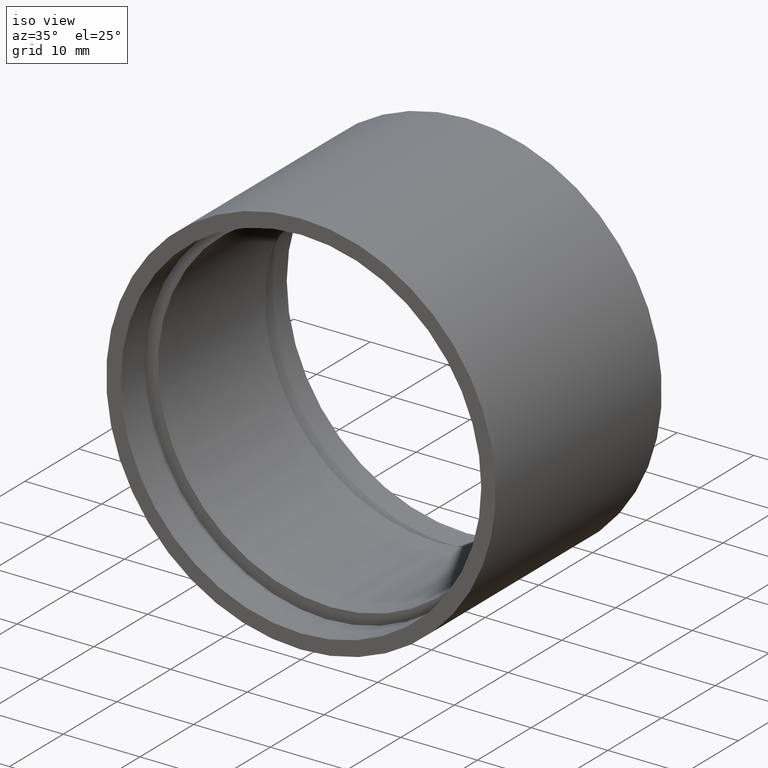
[diagram: clean part render]
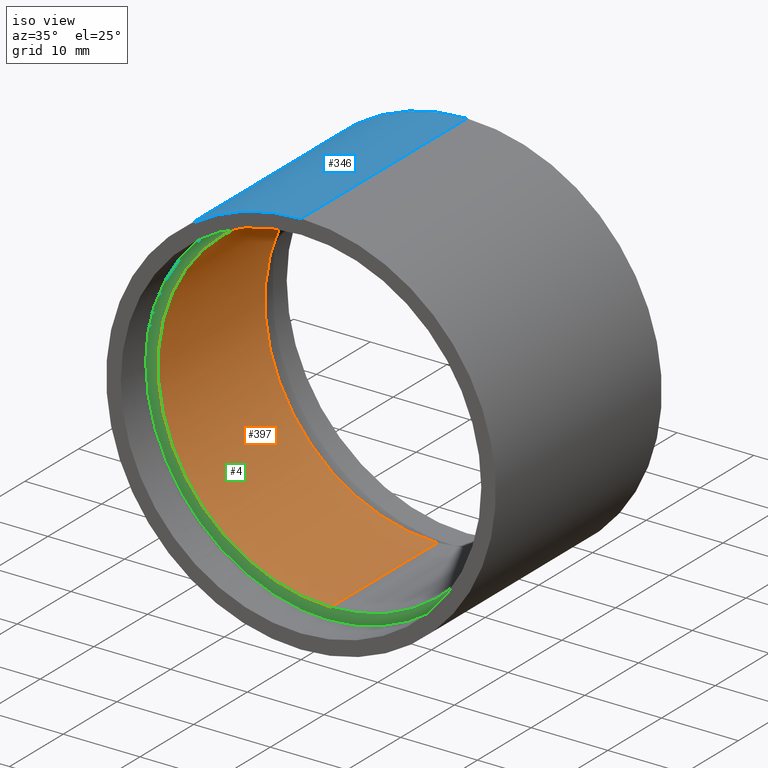
[diagram: same view with three faces highlighted in distinct colors, each labeled with its STEP entity id]
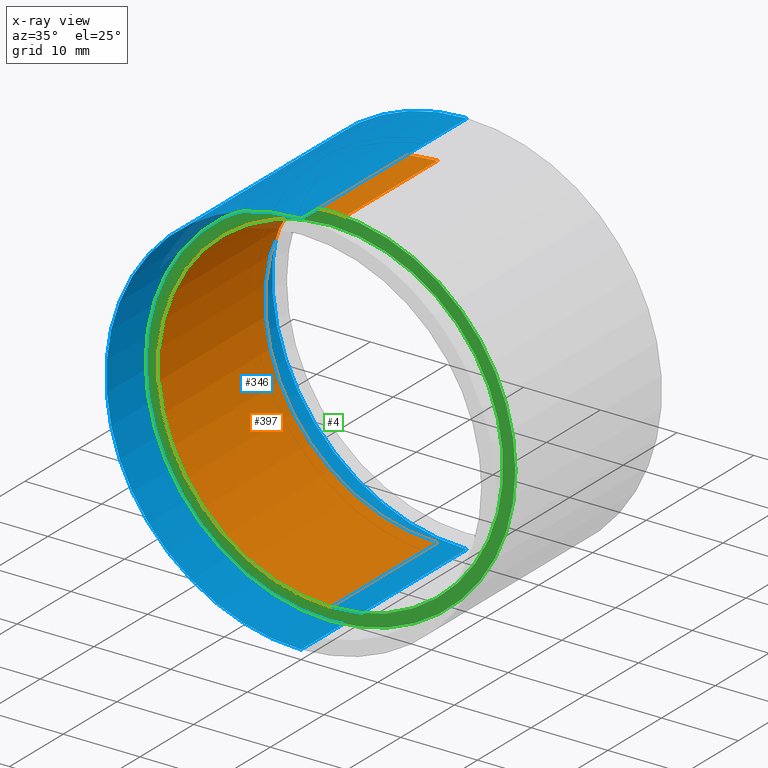
[diagram: x-ray of the same camera — body ghosted, the three highlighted faces saturated]
A machine part, iso view with three faces highlighted in distinct colors.
The next image is the same camera in x-ray (body ghosted, the three faces saturated) — at least one of them is partly hidden behind the body in this view.
Their STEP definitions:

[orange] entity #397 — the highlighted cylindrical surface (partial cylindrical patch) has radius 22.5 mm, axis along (-0, 1, -0).
#2 = VECTOR ( 'NONE', #167, 1000.000000000000000 ) ;
#45 = VERTEX_POINT ( 'NONE', #334 ) ;
#47 = DIRECTION ( 'NONE',  ( 0.0000000000000000000, 0.0000000000000000000, 1.000000000000000000 ) ) ;
#51 = DIRECTION ( 'NONE',  ( -0.0000000000000000000, 1.000000000000000000, -0.0000000000000000000 ) ) ;
#54 = DIRECTION ( 'NONE',  ( 0.0000000000000000000, 0.0000000000000000000, 1.000000000000000000 ) ) ;
#80 = ORIENTED_EDGE ( 'NONE', *, *, #554, .F. ) ;
#89 = VERTEX_POINT ( 'NONE', #614 ) ;
#100 = CIRCLE ( 'NONE', #351, 22.50000000000001800 ) ;
#105 = CARTESIAN_POINT ( 'NONE',  ( 2.755455298081546700E-015, 161.3761669434274500, -22.50000000000001800 ) ) ;
#129 = EDGE_CURVE ( 'NONE', #89, #45, #280, .T. ) ;
#144 = CARTESIAN_POINT ( 'NONE',  ( 0.0000000000000000000, 25.39999999999997700, 22.50000000000001800 ) ) ;
#157 = DIRECTION ( 'NONE',  ( -0.0000000000000000000, 1.000000000000000000, -0.0000000000000000000 ) ) ;
#167 = DIRECTION ( 'NONE',  ( -0.0000000000000000000, 1.000000000000000000, -0.0000000000000000000 ) ) ;
#191 = VERTEX_POINT ( 'NONE', #144 ) ;
#210 = CARTESIAN_POINT ( 'NONE',  ( 0.0000000000000000000, 161.3761669434274500, 22.50000000000001800 ) ) ;
#222 = VECTOR ( 'NONE', #157, 1000.000000000000000 ) ;
#247 = DIRECTION ( 'NONE',  ( -0.0000000000000000000, 1.000000000000000000, -0.0000000000000000000 ) ) ;
#249 = EDGE_LOOP ( 'NONE', ( #326, #605, #258, #80 ) ) ;
#252 = CARTESIAN_POINT ( 'NONE',  ( 0.0000000000000000000, 25.39999999999997700, 0.0000000000000000000 ) ) ;
#258 = ORIENTED_EDGE ( 'NONE', *, *, #402, .T. ) ;
#280 = LINE ( 'NONE', #105, #222 ) ;
#282 = AXIS2_PLACEMENT_3D ( 'NONE', #340, #247, #47 ) ;
#300 = EDGE_CURVE ( 'NONE', #89, #342, #100, .T. ) ;
#326 = ORIENTED_EDGE ( 'NONE', *, *, #300, .F. ) ;
#334 = CARTESIAN_POINT ( 'NONE',  ( 2.755455298081546700E-015, 25.39999999999997700, -22.50000000000001800 ) ) ;
#340 = CARTESIAN_POINT ( 'NONE',  ( 0.0000000000000000000, 161.3761669434274500, 0.0000000000000000000 ) ) ;
#342 = VERTEX_POINT ( 'NONE', #575 ) ;
#345 = CARTESIAN_POINT ( 'NONE',  ( 0.0000000000000000000, 5.499999999999976900, 0.0000000000000000000 ) ) ;
#351 = AXIS2_PLACEMENT_3D ( 'NONE', #345, #51, #54 ) ;
#383 = CYLINDRICAL_SURFACE ( 'NONE', #282, 22.50000000000001800 ) ;
#397 = ADVANCED_FACE ( 'NONE', ( #506 ), #383, .F. ) ;
#402 = EDGE_CURVE ( 'NONE', #45, #191, #603, .T. ) ;
#475 = DIRECTION ( 'NONE',  ( -0.0000000000000000000, 1.000000000000000000, -0.0000000000000000000 ) ) ;
#479 = DIRECTION ( 'NONE',  ( 0.0000000000000000000, 0.0000000000000000000, 1.000000000000000000 ) ) ;
#506 = FACE_OUTER_BOUND ( 'NONE', #249, .T. ) ;
#539 = LINE ( 'NONE', #210, #2 ) ;
#554 = EDGE_CURVE ( 'NONE', #342, #191, #539, .T. ) ;
#575 = CARTESIAN_POINT ( 'NONE',  ( 0.0000000000000000000, 5.499999999999976900, 22.50000000000001800 ) ) ;
#603 = CIRCLE ( 'NONE', #606, 22.50000000000001800 ) ;
#605 = ORIENTED_EDGE ( 'NONE', *, *, #129, .T. ) ;
#606 = AXIS2_PLACEMENT_3D ( 'NONE', #252, #475, #479 ) ;
#614 = CARTESIAN_POINT ( 'NONE',  ( 2.755455298081546700E-015, 5.499999999999976900, -22.50000000000001800 ) ) ;

[blue] entity #346 — the highlighted cylindrical surface (partial cylindrical patch) has radius 25.4 mm, axis along (-0, 1, -0).
#14 = CARTESIAN_POINT ( 'NONE',  ( 0.0000000000000000000, 30.89999999999998400, 0.0000000000000000000 ) ) ;
#32 = ORIENTED_EDGE ( 'NONE', *, *, #513, .F. ) ;
#34 = AXIS2_PLACEMENT_3D ( 'NONE', #14, #204, #156 ) ;
#81 = AXIS2_PLACEMENT_3D ( 'NONE', #228, #318, #581 ) ;
#83 = ORIENTED_EDGE ( 'NONE', *, *, #493, .F. ) ;
#99 = DIRECTION ( 'NONE',  ( -0.0000000000000000000, 1.000000000000000000, -0.0000000000000000000 ) ) ;
#122 = AXIS2_PLACEMENT_3D ( 'NONE', #431, #99, #532 ) ;
#138 = CARTESIAN_POINT ( 'NONE',  ( 0.0000000000000000000, 30.89999999999998400, 25.40000000000002000 ) ) ;
#156 = DIRECTION ( 'NONE',  ( 0.0000000000000000000, 0.0000000000000000000, 1.000000000000000000 ) ) ;
#168 = EDGE_CURVE ( 'NONE', #301, #522, #425, .T. ) ;
#204 = DIRECTION ( 'NONE',  ( -0.0000000000000000000, 1.000000000000000000, -0.0000000000000000000 ) ) ;
#228 = CARTESIAN_POINT ( 'NONE',  ( 0.0000000000000000000, -2.775557561562891400E-014, 0.0000000000000000000 ) ) ;
#301 = VERTEX_POINT ( 'NONE', #498 ) ;
#311 = VERTEX_POINT ( 'NONE', #138 ) ;
#318 = DIRECTION ( 'NONE',  ( -0.0000000000000000000, 1.000000000000000000, -0.0000000000000000000 ) ) ;
#327 = ORIENTED_EDGE ( 'NONE', *, *, #168, .T. ) ;
#331 = ORIENTED_EDGE ( 'NONE', *, *, #372, .T. ) ;
#335 = CARTESIAN_POINT ( 'NONE',  ( 0.0000000000000000000, 161.3761669434274500, 25.40000000000001600 ) ) ;
#346 = ADVANCED_FACE ( 'NONE', ( #531 ), #485, .T. ) ;
#372 = EDGE_CURVE ( 'NONE', #522, #311, #382, .T. ) ;
#382 = LINE ( 'NONE', #335, #454 ) ;
#425 = CIRCLE ( 'NONE', #81, 25.40000000000001300 ) ;
#431 = CARTESIAN_POINT ( 'NONE',  ( 0.0000000000000000000, 161.3761669434274500, 0.0000000000000000000 ) ) ;
#435 = CIRCLE ( 'NONE', #34, 25.40000000000002000 ) ;
#436 = DIRECTION ( 'NONE',  ( -0.0000000000000000000, 1.000000000000000000, -0.0000000000000000000 ) ) ;
#441 = DIRECTION ( 'NONE',  ( -0.0000000000000000000, 1.000000000000000000, -0.0000000000000000000 ) ) ;
#454 = VECTOR ( 'NONE', #436, 1000.000000000000000 ) ;
#456 = VECTOR ( 'NONE', #441, 1000.000000000000000 ) ;
#468 = VERTEX_POINT ( 'NONE', #495 ) ;
#485 = CYLINDRICAL_SURFACE ( 'NONE', #122, 25.40000000000001600 ) ;
#493 = EDGE_CURVE ( 'NONE', #468, #311, #435, .T. ) ;
#495 = CARTESIAN_POINT ( 'NONE',  ( 3.110602869834279600E-015, 30.89999999999998400, -25.40000000000002300 ) ) ;
#498 = CARTESIAN_POINT ( 'NONE',  ( 3.110602869834278800E-015, -2.775557561562891400E-014, -25.40000000000001300 ) ) ;
#513 = EDGE_CURVE ( 'NONE', #301, #468, #559, .T. ) ;
#522 = VERTEX_POINT ( 'NONE', #552 ) ;
#531 = FACE_OUTER_BOUND ( 'NONE', #615, .T. ) ;
#532 = DIRECTION ( 'NONE',  ( 0.0000000000000000000, 0.0000000000000000000, 1.000000000000000000 ) ) ;
#536 = CARTESIAN_POINT ( 'NONE',  ( 3.110602869834278800E-015, 161.3761669434274500, -25.40000000000001600 ) ) ;
#552 = CARTESIAN_POINT ( 'NONE',  ( 0.0000000000000000000, -2.775557561562891400E-014, 25.40000000000001300 ) ) ;
#559 = LINE ( 'NONE', #536, #456 ) ;
#581 = DIRECTION ( 'NONE',  ( 0.0000000000000000000, 0.0000000000000000000, 1.000000000000000000 ) ) ;
#615 = EDGE_LOOP ( 'NONE', ( #32, #327, #331, #83 ) ) ;

[green] entity #4 — the highlighted planar face has unit normal (-0, 1, 0).
#4 = ADVANCED_FACE ( 'NONE', ( #508, #573 ), #184, .F. ) ;
#10 = CIRCLE ( 'NONE', #500, 24.10000000000001900 ) ;
#15 = ORIENTED_EDGE ( 'NONE', *, *, #236, .F. ) ;
#20 = EDGE_CURVE ( 'NONE', #342, #89, #39, .T. ) ;
#39 = CIRCLE ( 'NONE', #137, 22.50000000000001800 ) ;
#51 = DIRECTION ( 'NONE',  ( -0.0000000000000000000, 1.000000000000000000, -0.0000000000000000000 ) ) ;
#54 = DIRECTION ( 'NONE',  ( 0.0000000000000000000, 0.0000000000000000000, 1.000000000000000000 ) ) ;
#58 = VERTEX_POINT ( 'NONE', #91 ) ;
#87 = CARTESIAN_POINT ( 'NONE',  ( 0.0000000000000000000, 5.499999999999976900, 0.0000000000000000000 ) ) ;
#89 = VERTEX_POINT ( 'NONE', #614 ) ;
#91 = CARTESIAN_POINT ( 'NONE',  ( 0.0000000000000000000, 5.499999999999976900, 24.10000000000001900 ) ) ;
#100 = CIRCLE ( 'NONE', #351, 22.50000000000001800 ) ;
#116 = EDGE_CURVE ( 'NONE', #330, #58, #378, .T. ) ;
#136 = DIRECTION ( 'NONE',  ( 0.0000000000000000000, 0.0000000000000000000, 1.000000000000000000 ) ) ;
#137 = AXIS2_PLACEMENT_3D ( 'NONE', #87, #422, #290 ) ;
#180 = EDGE_LOOP ( 'NONE', ( #15, #229 ) ) ;
#184 = PLANE ( 'NONE',  #377 ) ;
#207 = DIRECTION ( 'NONE',  ( -0.0000000000000000000, 1.000000000000000000, -0.0000000000000000000 ) ) ;
#229 = ORIENTED_EDGE ( 'NONE', *, *, #116, .F. ) ;
#236 = EDGE_CURVE ( 'NONE', #58, #330, #10, .T. ) ;
#240 = CARTESIAN_POINT ( 'NONE',  ( 2.951398785945123600E-015, 5.499999999999976900, -24.10000000000001900 ) ) ;
#245 = DIRECTION ( 'NONE',  ( 0.0000000000000000000, 0.0000000000000000000, 1.000000000000000000 ) ) ;
#288 = CARTESIAN_POINT ( 'NONE',  ( 0.0000000000000000000, 5.499999999999976900, 0.0000000000000000000 ) ) ;
#290 = DIRECTION ( 'NONE',  ( 0.0000000000000000000, 0.0000000000000000000, 1.000000000000000000 ) ) ;
#300 = EDGE_CURVE ( 'NONE', #89, #342, #100, .T. ) ;
#305 = AXIS2_PLACEMENT_3D ( 'NONE', #288, #426, #136 ) ;
#310 = ORIENTED_EDGE ( 'NONE', *, *, #20, .T. ) ;
#330 = VERTEX_POINT ( 'NONE', #240 ) ;
#342 = VERTEX_POINT ( 'NONE', #575 ) ;
#345 = CARTESIAN_POINT ( 'NONE',  ( 0.0000000000000000000, 5.499999999999976900, 0.0000000000000000000 ) ) ;
#351 = AXIS2_PLACEMENT_3D ( 'NONE', #345, #51, #54 ) ;
#377 = AXIS2_PLACEMENT_3D ( 'NONE', #610, #424, #245 ) ;
#378 = CIRCLE ( 'NONE', #305, 24.10000000000001900 ) ;
#422 = DIRECTION ( 'NONE',  ( -0.0000000000000000000, 1.000000000000000000, -0.0000000000000000000 ) ) ;
#424 = DIRECTION ( 'NONE',  ( -0.0000000000000000000, 1.000000000000000000, 0.0000000000000000000 ) ) ;
#426 = DIRECTION ( 'NONE',  ( -0.0000000000000000000, 1.000000000000000000, -0.0000000000000000000 ) ) ;
#450 = DIRECTION ( 'NONE',  ( 0.0000000000000000000, 0.0000000000000000000, 1.000000000000000000 ) ) ;
#500 = AXIS2_PLACEMENT_3D ( 'NONE', #618, #207, #450 ) ;
#508 = FACE_OUTER_BOUND ( 'NONE', #180, .T. ) ;
#515 = EDGE_LOOP ( 'NONE', ( #310, #591 ) ) ;
#573 = FACE_BOUND ( 'NONE', #515, .T. ) ;
#575 = CARTESIAN_POINT ( 'NONE',  ( 0.0000000000000000000, 5.499999999999976900, 22.50000000000001800 ) ) ;
#591 = ORIENTED_EDGE ( 'NONE', *, *, #300, .T. ) ;
#610 = CARTESIAN_POINT ( 'NONE',  ( 22.50000000000001800, 5.499999999999984900, 0.0000000000000000000 ) ) ;
#614 = CARTESIAN_POINT ( 'NONE',  ( 2.755455298081546700E-015, 5.499999999999976900, -22.50000000000001800 ) ) ;
#618 = CARTESIAN_POINT ( 'NONE',  ( 0.0000000000000000000, 5.499999999999976900, 0.0000000000000000000 ) ) ;